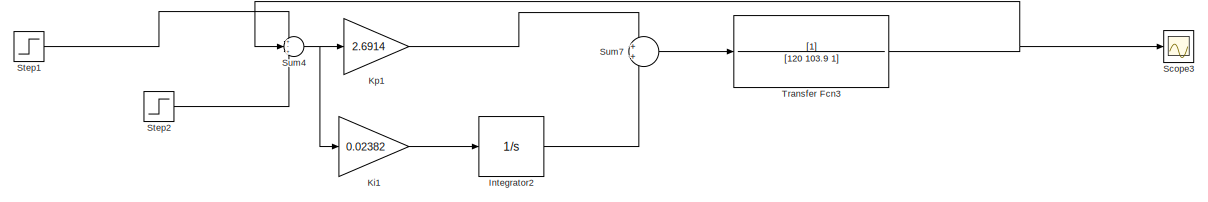
[diagram: root canvas - part 1/2, top right region]
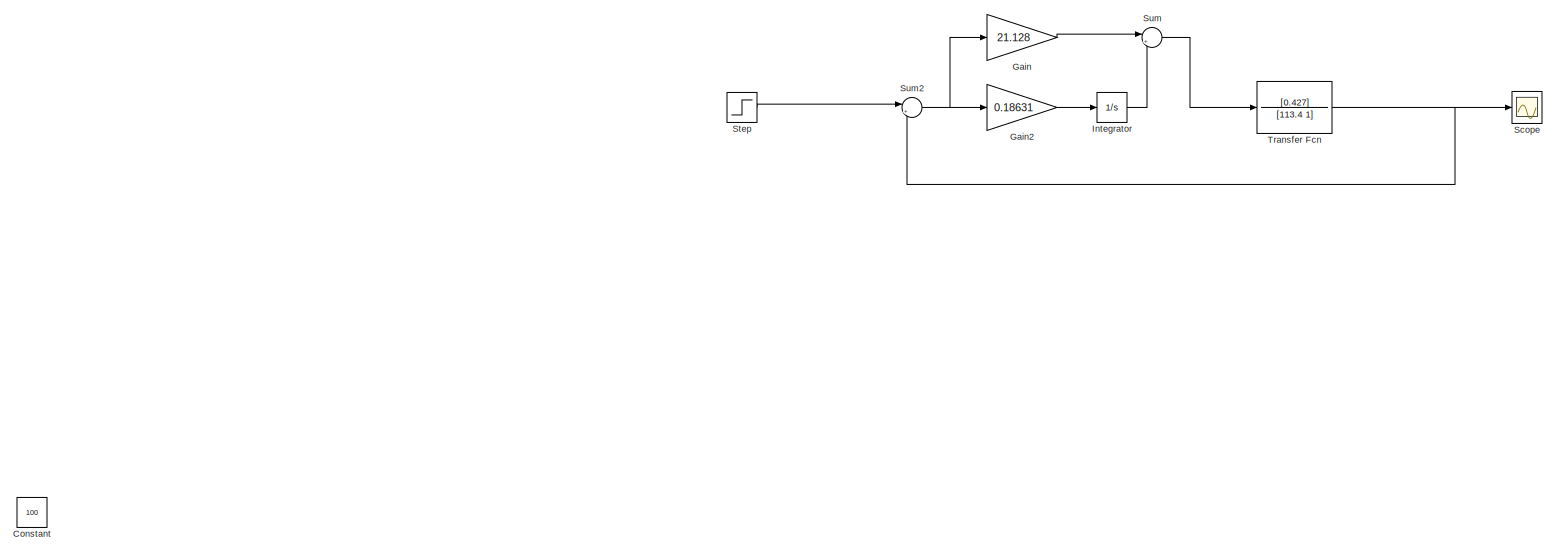
[diagram: root canvas - part 2/2, full width, bottom band]
MODEL slx_a539ca26022b
KIND model
CONFIG AbsTol = auto
CONFIG EnableMultiTasking = off
CONFIG FixedStep = auto
CONFIG MaxStep = auto
CONFIG MinStep = auto
CONFIG RelTol = 1e-3
CONFIG SampleTimeConstraint = Unconstrained
CONFIG SolverName = VariableStepAuto
CONFIG StartTime = 0.0
CONFIG StopTime = 1000
BLOCK [Constant] Constant
  Value = 100
BLOCK [Gain] Gain
  Gain = 21.128
BLOCK [Gain] Gain2
  Gain = 0.18631
BLOCK [Integrator] Integrator
BLOCK [Integrator] Integrator2
BLOCK [Gain] Ki1
  Gain = 0.02382
BLOCK [Gain] Kp1
  Gain = 2.6914
BLOCK [Scope] Scope
  Floating = off
  NumInputPorts = 1
  ScopeSpecificationString = Simulink.scopes.TimeScopeBlockCfg('CurrentConfiguration', extmgr.ConfigurationSet(extmgr.Configuration('Core','General UI',true),extmgr.Configuration('Core','Source UI',true),extmgr.Configuration('Sources','WiredSimulink',true),extmgr.Configuration('Visuals','Time Domain',true,'SerializedDisplays',{struct('MinYLimReal','-12.5','MaxYLimReal','112.5','YLabelReal','','MinYLimMag','0.00000','MaxYLimMa...<+1347ch>
BLOCK [Scope] Scope3
  Floating = off
  NumInputPorts = 1
  ScopeSpecificationString = Simulink.scopes.TimeScopeBlockCfg('CurrentConfiguration', extmgr.ConfigurationSet(extmgr.Configuration('Core','General UI',true),extmgr.Configuration('Core','Source UI',true),extmgr.Configuration('Sources','WiredSimulink',true,'DataLoggingVariableName','ScopeData2'),extmgr.Configuration('Visuals','Time Domain',true,'SerializedDisplays',{struct('MinYLimReal','-12.43013','MaxYLimReal','111.87117','Y...<+1427ch>
BLOCK [Step] Step
  After = 100
  SampleTime = 0
BLOCK [Step] Step1
  After = 100
  SampleTime = 0
BLOCK [Step] Step2
  After = -50
  SampleTime = 0
  Time = 300
BLOCK [Sum] Sum
  Inputs = |++
BLOCK [Sum] Sum2
  Inputs = |+-
  SaturateOnIntegerOverflow = on
BLOCK [Sum] Sum4
  Inputs = +-+
  SaturateOnIntegerOverflow = on
BLOCK [Sum] Sum7
BLOCK [TransferFcn] Transfer Fcn
  Denominator = [113.4 1]
  Numerator = [0.427]
BLOCK [TransferFcn] Transfer Fcn3
  Denominator = [120 103.9 1]
LINE Gain2:1 -> Integrator:1
LINE Gain:1 -> Sum:1
LINE Integrator2:1 -> Sum7:2
LINE Integrator:1 -> Sum:2
LINE Ki1:1 -> Integrator2:1
LINE Kp1:1 -> Sum7:1
LINE Step1:1 -> Sum4:1
LINE Step2:1 -> Sum4:3
LINE Step:1 -> Sum2:1
NET Sum2:1 -> Gain2:1, Gain:1
NET Sum4:1 -> Ki1:1, Kp1:1
LINE Sum7:1 -> Transfer Fcn3:1
LINE Sum:1 -> Transfer Fcn:1
NET Transfer Fcn3:1 -> Scope3:1, Sum4:2
NET Transfer Fcn:1 -> Scope:1, Sum2:2
note: NET lines group one-source signal fan-out (src -> all destinations, sorted); 1:1 wires keep LINE
